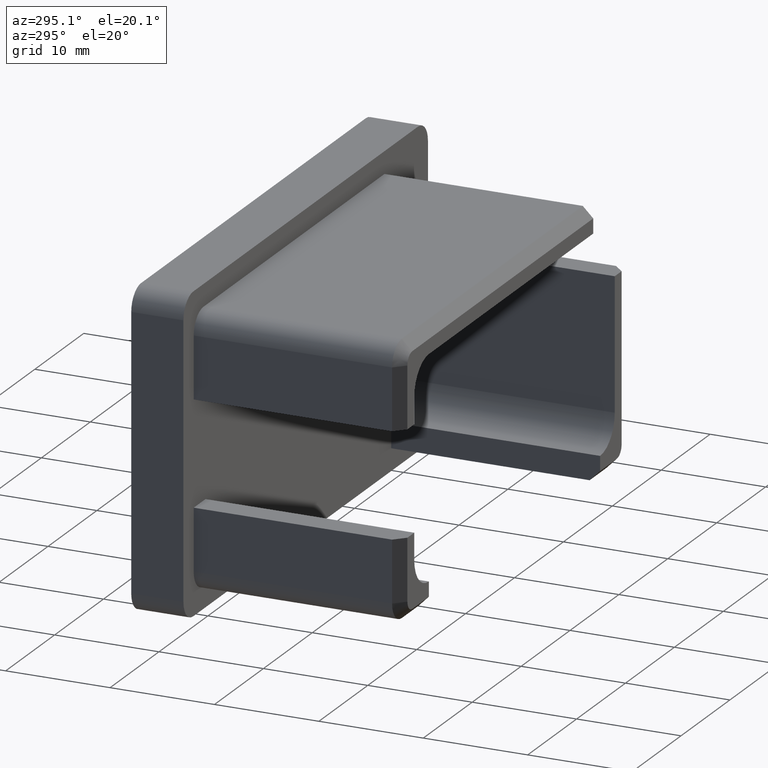
[diagram: clean part render]
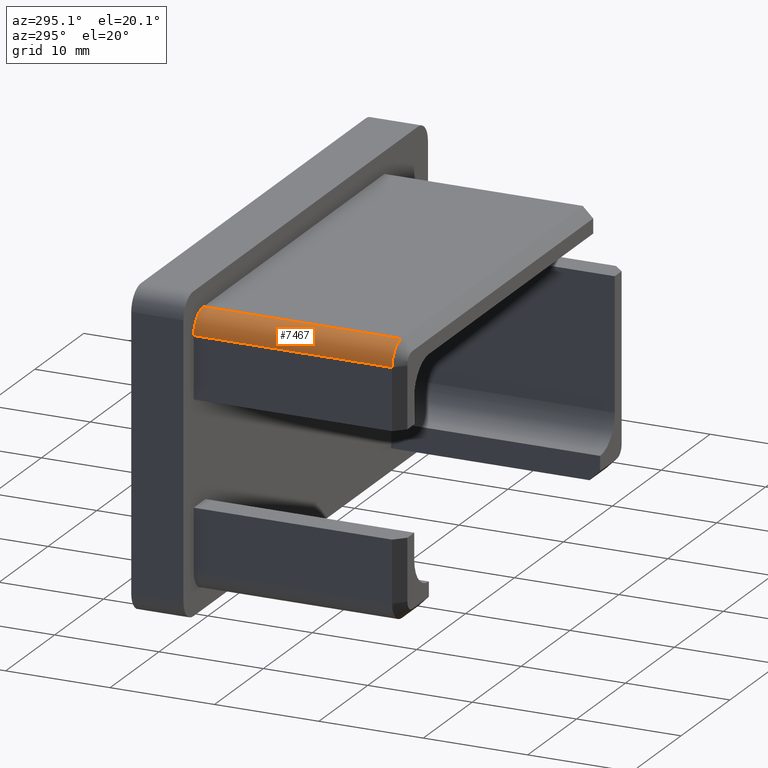
[diagram: same view with one face highlighted and labeled with its STEP entity id]
A machine part, auxiliary view. The second image highlights one B-rep face of the part: STEP entity #7467.
In plain terms, the highlighted cylindrical surface (edge-blend (fillet) strip) has radius 2 mm, axis along (-0, 1, 0).
Its self-contained STEP definition (entity closure, byte-faithful):
#1913 = DIRECTION ( 'NONE',  ( -0.000000000000000000, -1.000000000000000000, -0.000000000000000000 ) ) ;
#2063 = VERTEX_POINT ( 'NONE', #9314 ) ;
#2631 = DIRECTION ( 'NONE',  ( -0.000000000000000000, 1.000000000000000000, 0.000000000000000000 ) ) ;
#2782 = CIRCLE ( 'NONE', #13023, 2.000000000000000000 ) ;
#3291 = DIRECTION ( 'NONE',  ( 0.000000000000000000, 1.000000000000000000, 0.000000000000000000 ) ) ;
#4056 = ORIENTED_EDGE ( 'NONE', *, *, #17327, .F. ) ;
#4077 = AXIS2_PLACEMENT_3D ( 'NONE', #8240, #10969, #12314 ) ;
#4318 = CARTESIAN_POINT ( 'NONE',  ( -20.90000000000000924, -20.00000000000000000, 12.90000000000000213 ) ) ;
#4736 = EDGE_CURVE ( 'NONE', #16655, #6170, #9748, .T. ) ;
#5914 = VERTEX_POINT ( 'NONE', #10547 ) ;
#5932 = EDGE_LOOP ( 'NONE', ( #11098, #6911, #7720, #4056 ) ) ;
#6170 = VERTEX_POINT ( 'NONE', #6876 ) ;
#6219 = CARTESIAN_POINT ( 'NONE',  ( -22.90000000000000568, -20.00000000000000000, 10.90000000000000213 ) ) ;
#6300 = EDGE_CURVE ( 'NONE', #16655, #2063, #10618, .T. ) ;
#6876 = CARTESIAN_POINT ( 'NONE',  ( -20.90000000000000924, -19.00000000000000000, 12.90000000000000213 ) ) ;
#6911 = ORIENTED_EDGE ( 'NONE', *, *, #4736, .T. ) ;
#6961 = FACE_OUTER_BOUND ( 'NONE', #5932, .T. ) ;
#7334 = DIRECTION ( 'NONE',  ( 0.000000000000000000, 0.000000000000000000, 1.000000000000000000 ) ) ;
#7467 = ADVANCED_FACE ( 'NONE', ( #6961 ), #8023, .T. ) ;
#7720 = ORIENTED_EDGE ( 'NONE', *, *, #12397, .F. ) ;
#8023 = CYLINDRICAL_SURFACE ( 'NONE', #12788, 2.000000000000000000 ) ;
#8240 = CARTESIAN_POINT ( 'NONE',  ( -20.90000000000000924, -19.00000000000000000, 10.90000000000000213 ) ) ;
#8569 = CARTESIAN_POINT ( 'NONE',  ( -20.90000000000000924, 0.000000000000000000, 10.90000000000000213 ) ) ;
#8665 = VECTOR ( 'NONE', #17379, 1000.000000000000000 ) ;
#9314 = CARTESIAN_POINT ( 'NONE',  ( -22.90000000000000568, 0.000000000000000000, 10.90000000000000213 ) ) ;
#9748 = CIRCLE ( 'NONE', #4077, 2.000000000000000000 ) ;
#10469 = CARTESIAN_POINT ( 'NONE',  ( -20.90000000000000924, -20.00000000000000000, 10.90000000000000213 ) ) ;
#10547 = CARTESIAN_POINT ( 'NONE',  ( -20.90000000000000924, 0.000000000000000000, 12.90000000000000213 ) ) ;
#10618 = LINE ( 'NONE', #6219, #8665 ) ;
#10969 = DIRECTION ( 'NONE',  ( 0.000000000000000000, 1.000000000000000000, 0.000000000000000000 ) ) ;
#11098 = ORIENTED_EDGE ( 'NONE', *, *, #6300, .F. ) ;
#11507 = CARTESIAN_POINT ( 'NONE',  ( -22.90000000000000568, -19.00000000000000000, 10.90000000000000213 ) ) ;
#12314 = DIRECTION ( 'NONE',  ( 0.000000000000000000, 0.000000000000000000, -1.000000000000000000 ) ) ;
#12397 = EDGE_CURVE ( 'NONE', #5914, #6170, #14055, .T. ) ;
#12788 = AXIS2_PLACEMENT_3D ( 'NONE', #10469, #2631, #13476 ) ;
#13023 = AXIS2_PLACEMENT_3D ( 'NONE', #8569, #3291, #7334 ) ;
#13476 = DIRECTION ( 'NONE',  ( 0.000000000000000000, 0.000000000000000000, 1.000000000000000000 ) ) ;
#14055 = LINE ( 'NONE', #4318, #16822 ) ;
#16655 = VERTEX_POINT ( 'NONE', #11507 ) ;
#16822 = VECTOR ( 'NONE', #1913, 1000.000000000000000 ) ;
#17327 = EDGE_CURVE ( 'NONE', #2063, #5914, #2782, .T. ) ;
#17379 = DIRECTION ( 'NONE',  ( -0.000000000000000000, 1.000000000000000000, 0.000000000000000000 ) ) ;